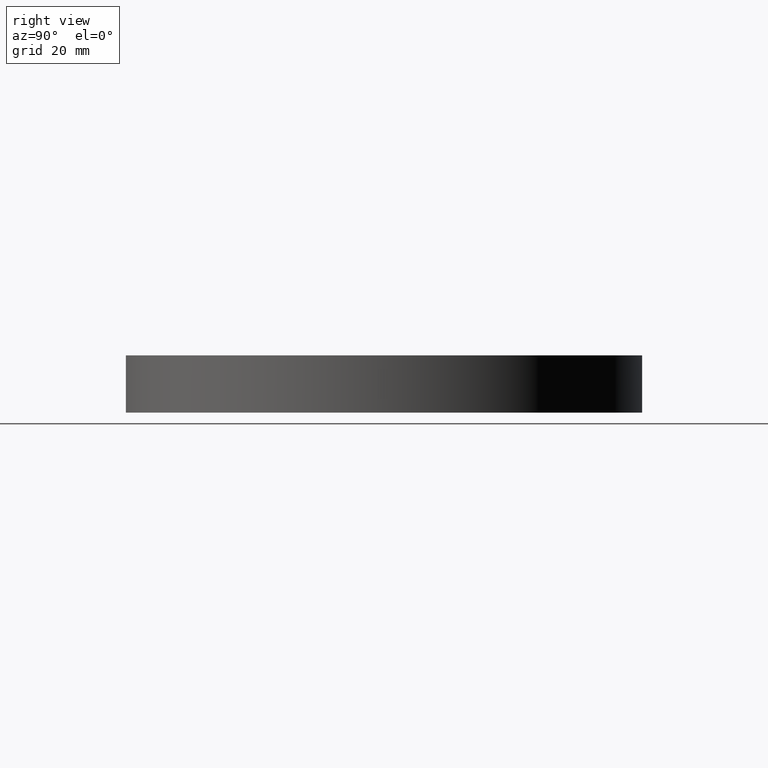
[diagram: clean part render]
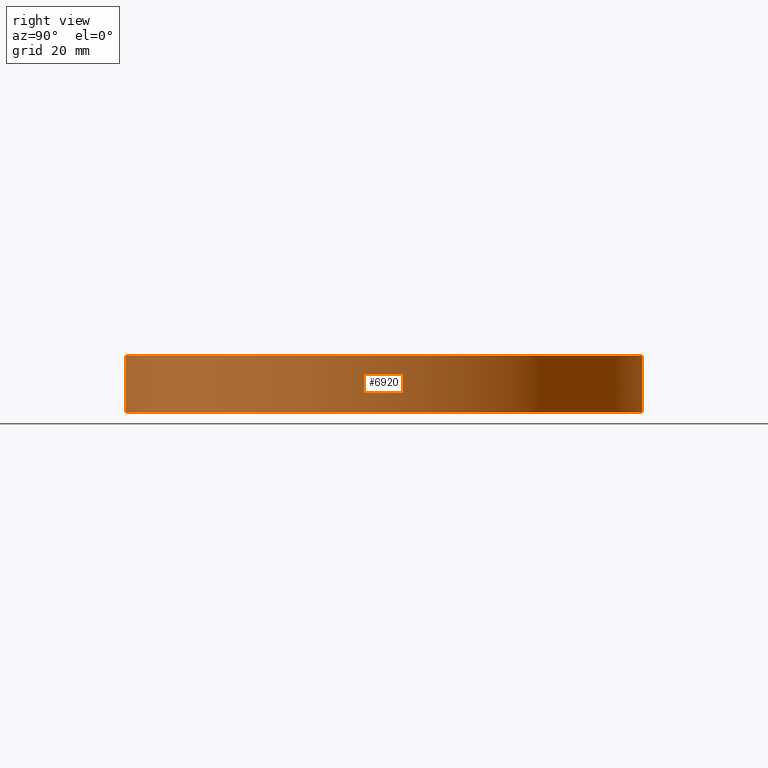
[diagram: same view with one face highlighted and labeled with its STEP entity id]
A machine part, right view. The second image highlights one B-rep face of the part: STEP entity #6920.
In plain terms, the highlighted cylindrical surface (partial cylindrical patch) has radius 54 mm, axis along (-0, -0, -1).
Its self-contained STEP definition (entity closure, byte-faithful):
#1038 = VERTEX_POINT ( 'NONE', #5693 ) ;
#1864 = LINE ( 'NONE', #9061, #11596 ) ;
#2335 = DIRECTION ( 'NONE',  ( -0.0000000000000000000, -0.0000000000000000000, -1.000000000000000000 ) ) ;
#2448 = CARTESIAN_POINT ( 'NONE',  ( -0.5000000000000000000, 53.99768513556853800, 5.999999999999996400 ) ) ;
#2499 = ORIENTED_EDGE ( 'NONE', *, *, #10477, .T. ) ;
#3080 = EDGE_CURVE ( 'NONE', #1038, #6396, #5966, .T. ) ;
#3316 = EDGE_CURVE ( 'NONE', #8982, #6396, #9630, .T. ) ;
#3416 = CARTESIAN_POINT ( 'NONE',  ( -0.5000000000000000000, 53.99768513556853800, -6.000000000000004400 ) ) ;
#3436 = CARTESIAN_POINT ( 'NONE',  ( 0.5000000000000000000, 53.99768513556853800, -6.000000000000004400 ) ) ;
#3620 = DIRECTION ( 'NONE',  ( -1.000000000000000000, 0.0000000000000000000, 0.0000000000000000000 ) ) ;
#4257 = AXIS2_PLACEMENT_3D ( 'NONE', #9898, #2335, #8915 ) ;
#4417 = DIRECTION ( 'NONE',  ( -0.0000000000000000000, -0.0000000000000000000, -1.000000000000000000 ) ) ;
#4634 = VECTOR ( 'NONE', #7290, 1000.000000000000000 ) ;
#4802 = CARTESIAN_POINT ( 'NONE',  ( -0.5000000000000000000, 53.99768513556854500, -6.000000000000003600 ) ) ;
#5159 = ORIENTED_EDGE ( 'NONE', *, *, #3080, .T. ) ;
#5315 = DIRECTION ( 'NONE',  ( -1.000000000000000000, 0.0000000000000000000, 0.0000000000000000000 ) ) ;
#5392 = EDGE_CURVE ( 'NONE', #10201, #8982, #8307, .T. ) ;
#5693 = CARTESIAN_POINT ( 'NONE',  ( 0.5000000000000000000, 53.99768513556854500, 5.999999999999996400 ) ) ;
#5966 = CIRCLE ( 'NONE', #4257, 54.00000000000000000 ) ;
#6396 = VERTEX_POINT ( 'NONE', #2448 ) ;
#6920 = ADVANCED_FACE ( 'NONE', ( #11767 ), #7399, .T. ) ;
#7130 = AXIS2_PLACEMENT_3D ( 'NONE', #9292, #9250, #3620 ) ;
#7290 = DIRECTION ( 'NONE',  ( -0.0000000000000000000, -0.0000000000000000000, 1.000000000000000000 ) ) ;
#7399 = CYLINDRICAL_SURFACE ( 'NONE', #7130, 54.00000000000000000 ) ;
#8006 = CARTESIAN_POINT ( 'NONE',  ( 0.0000000000000000000, 0.0000000000000000000, -6.000000000000003600 ) ) ;
#8074 = EDGE_LOOP ( 'NONE', ( #8587, #2499, #5159, #10530 ) ) ;
#8168 = DIRECTION ( 'NONE',  ( -0.0000000000000000000, -0.0000000000000000000, 1.000000000000000000 ) ) ;
#8307 = CIRCLE ( 'NONE', #11349, 54.00000000000000000 ) ;
#8587 = ORIENTED_EDGE ( 'NONE', *, *, #5392, .F. ) ;
#8915 = DIRECTION ( 'NONE',  ( -1.000000000000000000, 0.0000000000000000000, 0.0000000000000000000 ) ) ;
#8982 = VERTEX_POINT ( 'NONE', #4802 ) ;
#9061 = CARTESIAN_POINT ( 'NONE',  ( 0.5000000000000000000, 53.99768513556853800, -6.000000000000004400 ) ) ;
#9250 = DIRECTION ( 'NONE',  ( -0.0000000000000000000, -0.0000000000000000000, -1.000000000000000000 ) ) ;
#9292 = CARTESIAN_POINT ( 'NONE',  ( 0.0000000000000000000, 0.0000000000000000000, 0.0000000000000000000 ) ) ;
#9630 = LINE ( 'NONE', #3416, #4634 ) ;
#9898 = CARTESIAN_POINT ( 'NONE',  ( 0.0000000000000000000, 0.0000000000000000000, 5.999999999999996400 ) ) ;
#10201 = VERTEX_POINT ( 'NONE', #3436 ) ;
#10477 = EDGE_CURVE ( 'NONE', #10201, #1038, #1864, .T. ) ;
#10530 = ORIENTED_EDGE ( 'NONE', *, *, #3316, .F. ) ;
#11349 = AXIS2_PLACEMENT_3D ( 'NONE', #8006, #4417, #5315 ) ;
#11596 = VECTOR ( 'NONE', #8168, 1000.000000000000000 ) ;
#11767 = FACE_OUTER_BOUND ( 'NONE', #8074, .T. ) ;